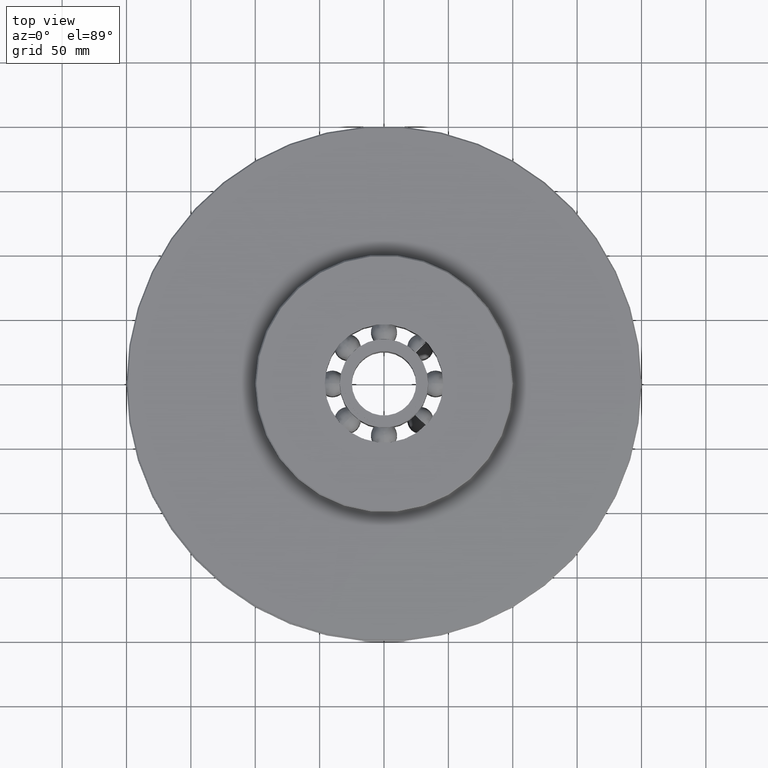
[diagram: clean part render]
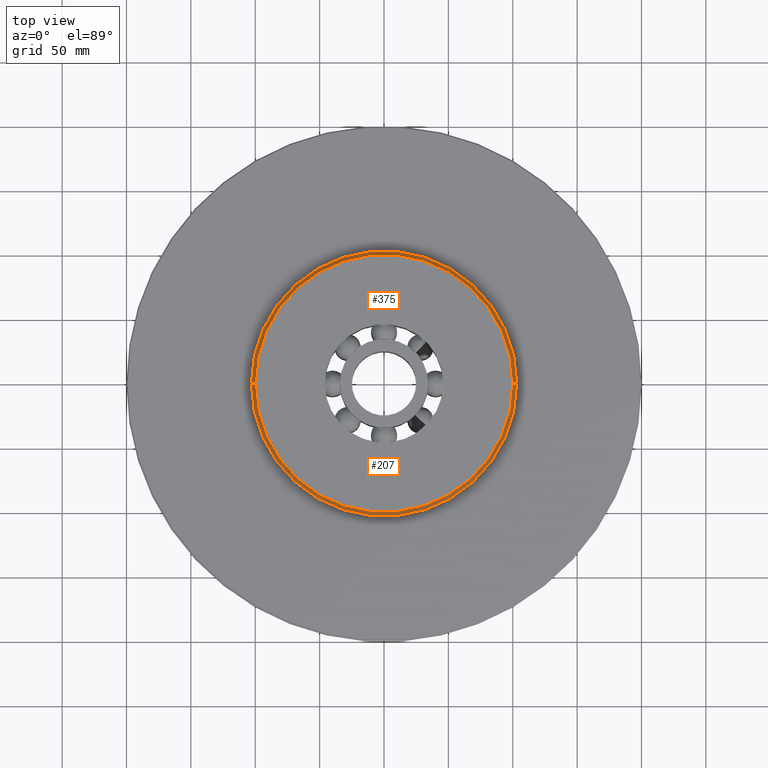
[diagram: same view with one multi-face feature highlighted, each face labeled with its STEP entity id]
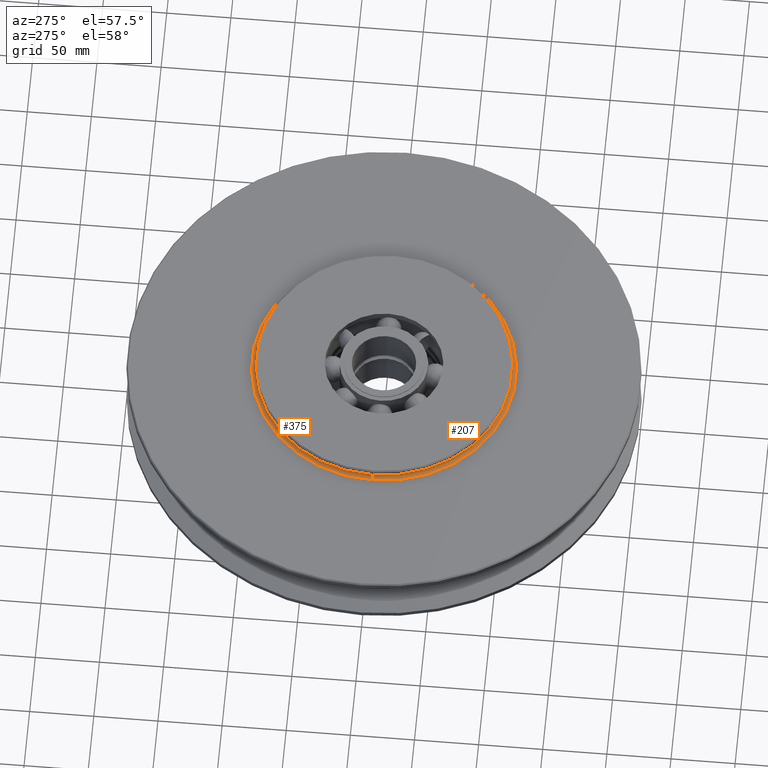
[diagram: same view with one multi-face feature highlighted, each face labeled with its STEP entity id]
A machine part, top view. The highlighted faces form ONE feature: a constant-radius fillet chain: 2 tangent blend faces with common blend radius 3 mm. The faces share edges in the B-rep.
A second angle (auxiliary view) of the same feature is appended — it is thin or edge-on in the first view.
Their STEP definitions:
[1] entity #207 (Torus):
#207=ADVANCED_FACE('',(#505),#506,.F.);
#505=FACE_OUTER_BOUND('',#915,.T.);
#506=TOROIDAL_SURFACE('',#916,103.0,3.00000000000003);
#915=EDGE_LOOP('',(#1459,#1460,#1461,#1462));
#916=AXIS2_PLACEMENT_3D('',#1463,#1464,#1465);
#1459=ORIENTED_EDGE('',*,*,#2696,.F.);
#1460=ORIENTED_EDGE('',*,*,#2697,.T.);
#1461=ORIENTED_EDGE('',*,*,#2698,.F.);
#1462=ORIENTED_EDGE('',*,*,#2699,.F.);
#1463=CARTESIAN_POINT('',(0.0,0.0,25.5));
#1464=DIRECTION('',(0.0,0.0,1.0));
#1465=DIRECTION('',(1.0,0.0,0.0));
#2696=EDGE_CURVE('',#3327,#3323,#3328,.T.);
#2697=EDGE_CURVE('',#3327,#3329,#3330,.T.);
#2698=EDGE_CURVE('',#3321,#3329,#3331,.T.);
#2699=EDGE_CURVE('',#3323,#3321,#3332,.T.);
#3321=VERTEX_POINT('',#5368);
#3323=VERTEX_POINT('',#5371);
#3327=VERTEX_POINT('',#5376);
#3328=CIRCLE('',#5377,3.00000000000003);
#3329=VERTEX_POINT('',#5378);
#3330=CIRCLE('',#5379,103.0);
#3331=CIRCLE('',#5380,3.00000000000003);
#3332=CIRCLE('',#5381,100.0);
#5368=CARTESIAN_POINT('',(100.0,0.0,25.5));
#5371=CARTESIAN_POINT('',(-100.0,1.22464679914735E-014,25.5));
#5376=CARTESIAN_POINT('',(-103.0,1.26138620312177E-014,22.5));
#5377=AXIS2_PLACEMENT_3D('',#9302,#9303,#9304);
#5378=CARTESIAN_POINT('',(103.0,0.0,22.5));
#5379=AXIS2_PLACEMENT_3D('',#9305,#9306,#9307);
#5380=AXIS2_PLACEMENT_3D('',#9308,#9309,#9310);
#5381=AXIS2_PLACEMENT_3D('',#9311,#9312,#9313);
#9302=CARTESIAN_POINT('',(-103.0,1.26138620312177E-014,25.5));
#9303=DIRECTION('',(-1.22464679914735E-016,-1.0,0.0));
#9304=DIRECTION('',(-1.0,1.22464679914735E-016,-0.0));
#9305=CARTESIAN_POINT('',(0.0,0.0,22.5));
#9306=DIRECTION('',(0.0,0.0,1.0));
#9307=DIRECTION('',(1.0,0.0,0.0));
#9308=CARTESIAN_POINT('',(103.0,-1.26138620312177E-014,25.5));
#9309=DIRECTION('',(-1.22464679914735E-016,-1.0,0.0));
#9310=DIRECTION('',(1.0,-1.22464679914735E-016,0.0));
#9311=CARTESIAN_POINT('',(0.0,0.0,25.5));
#9312=DIRECTION('',(0.0,0.0,1.0));
#9313=DIRECTION('',(1.0,0.0,0.0));
[2] entity #375 (Torus):
#375=ADVANCED_FACE('',(#778),#779,.F.);
#778=FACE_OUTER_BOUND('',#1188,.T.);
#779=TOROIDAL_SURFACE('',#1189,103.0,3.00000000000003);
#1188=EDGE_LOOP('',(#2451,#2452,#2453,#2454));
#1189=AXIS2_PLACEMENT_3D('',#2455,#2456,#2457);
#2451=ORIENTED_EDGE('',*,*,#2696,.T.);
#2452=ORIENTED_EDGE('',*,*,#2693,.F.);
#2453=ORIENTED_EDGE('',*,*,#2698,.T.);
#2454=ORIENTED_EDGE('',*,*,#3078,.T.);
#2455=CARTESIAN_POINT('',(0.0,0.0,25.5));
#2456=DIRECTION('',(0.0,0.0,1.0));
#2457=DIRECTION('',(1.0,0.0,0.0));
#2693=EDGE_CURVE('',#3321,#3323,#3324,.T.);
#2696=EDGE_CURVE('',#3327,#3323,#3328,.T.);
#2698=EDGE_CURVE('',#3321,#3329,#3331,.T.);
#3078=EDGE_CURVE('',#3329,#3327,#3895,.T.);
#3321=VERTEX_POINT('',#5368);
#3323=VERTEX_POINT('',#5371);
#3324=CIRCLE('',#5372,100.0);
#3327=VERTEX_POINT('',#5376);
#3328=CIRCLE('',#5377,3.00000000000003);
#3329=VERTEX_POINT('',#5378);
#3331=CIRCLE('',#5380,3.00000000000003);
#3895=CIRCLE('',#9094,103.0);
#5368=CARTESIAN_POINT('',(100.0,0.0,25.5));
#5371=CARTESIAN_POINT('',(-100.0,1.22464679914735E-014,25.5));
#5372=AXIS2_PLACEMENT_3D('',#9298,#9299,#9300);
#5376=CARTESIAN_POINT('',(-103.0,1.26138620312177E-014,22.5));
#5377=AXIS2_PLACEMENT_3D('',#9302,#9303,#9304);
#5378=CARTESIAN_POINT('',(103.0,0.0,22.5));
#5380=AXIS2_PLACEMENT_3D('',#9308,#9309,#9310);
#9094=AXIS2_PLACEMENT_3D('',#9707,#9708,#9709);
#9298=CARTESIAN_POINT('',(0.0,0.0,25.5));
#9299=DIRECTION('',(0.0,0.0,1.0));
#9300=DIRECTION('',(1.0,0.0,0.0));
#9302=CARTESIAN_POINT('',(-103.0,1.26138620312177E-014,25.5));
#9303=DIRECTION('',(-1.22464679914735E-016,-1.0,0.0));
#9304=DIRECTION('',(-1.0,1.22464679914735E-016,-0.0));
#9308=CARTESIAN_POINT('',(103.0,-1.26138620312177E-014,25.5));
#9309=DIRECTION('',(-1.22464679914735E-016,-1.0,0.0));
#9310=DIRECTION('',(1.0,-1.22464679914735E-016,0.0));
#9707=CARTESIAN_POINT('',(0.0,0.0,22.5));
#9708=DIRECTION('',(0.0,0.0,1.0));
#9709=DIRECTION('',(1.0,0.0,0.0));